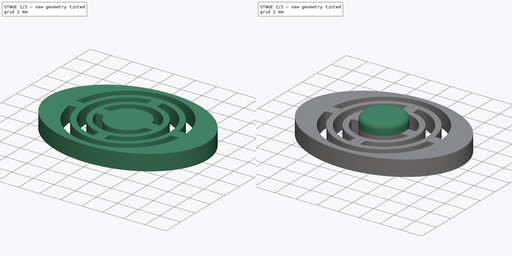
[diagram: build sequence overview — one tinted view per stage of 2, left to right]
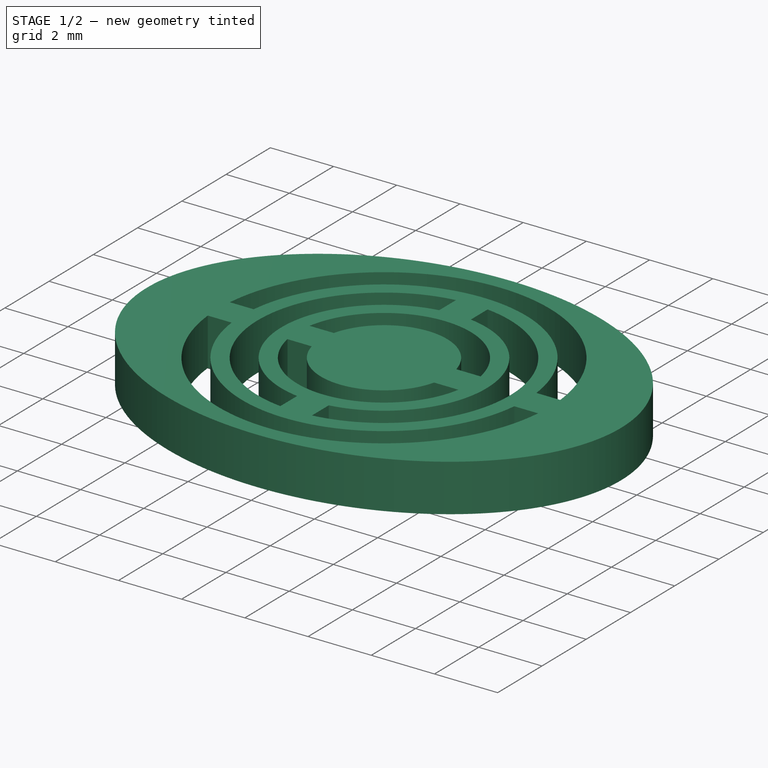
[diagram: stage 1 of 2 — iso view after this stage's code; geometry added in this stage tinted green]
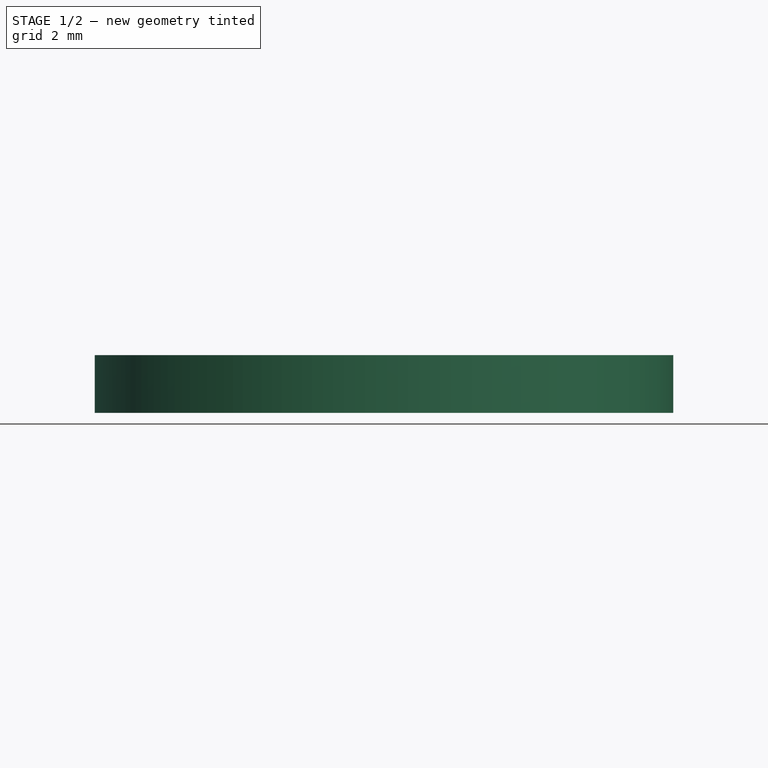
[diagram: stage 1 of 2 — front view after this stage's code; geometry added in this stage tinted green]
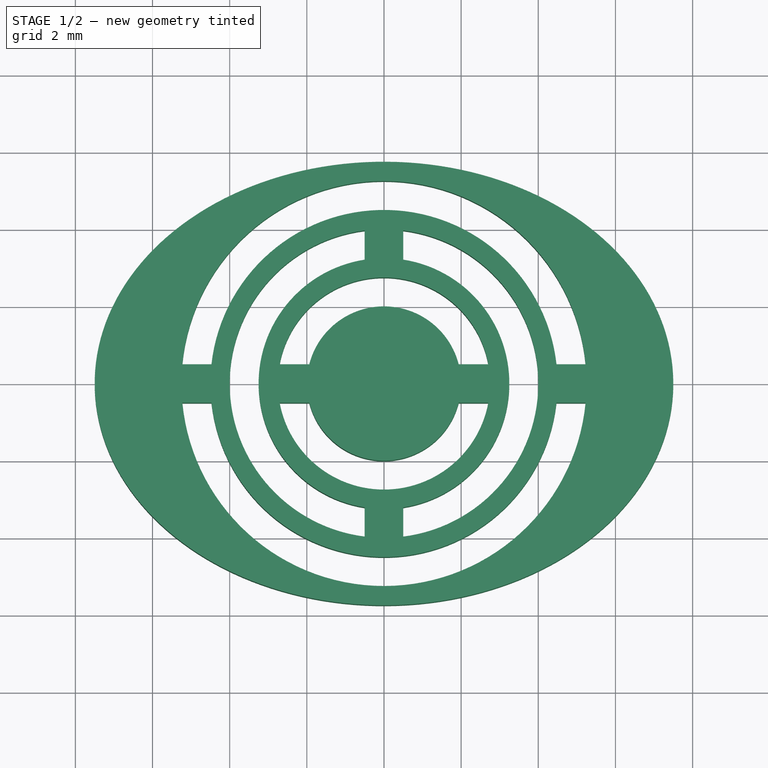
[diagram: stage 1 of 2 — top view after this stage's code; geometry added in this stage tinted green]
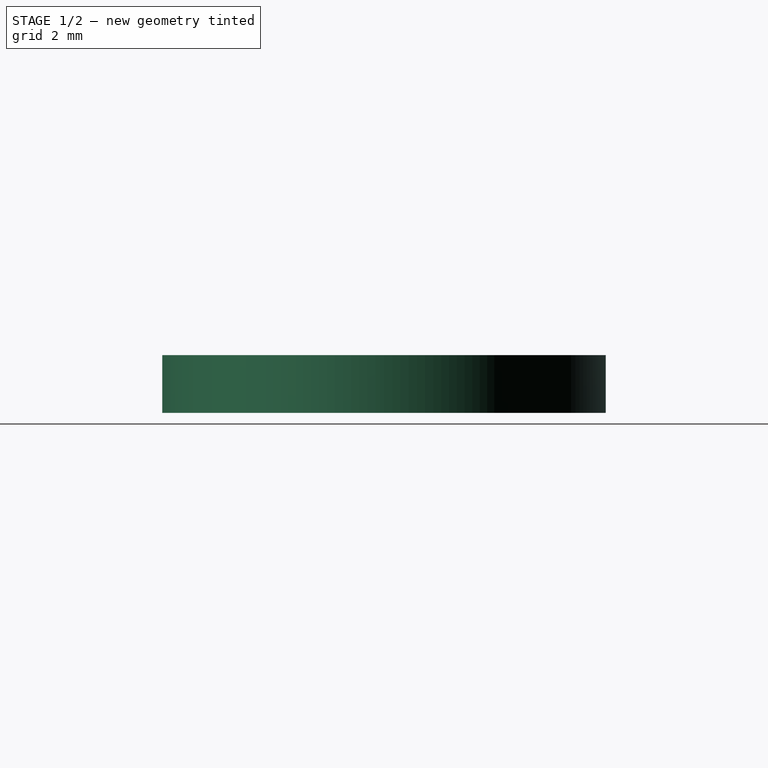
[diagram: stage 1 of 2 — right view after this stage's code; geometry added in this stage tinted green]
FCSTD DOCUMENT  (FreeCAD 0.20R27319 (Git))
Label: Remote Button Cap V2
License: All rights reserved
LicenseURL: http://en.wikipedia.org/wiki/All_rights_reserved
objects: Sketcher::SketchObject×3, PartDesign::Pad×2, PartDesign::Pocket×1, PartDesign::Fillet×1, PartDesign::Body×1
note: 12 computed .brp shape members not serialized (recipe doc carries the construction recipe); baked Part::Feature solids carry a one-line shape summary decoded from their .brp

FEATURE [Sketcher::SketchObject] Sketch
  FullyConstrained = true
  MapMode = 5
  Support = -> [XY_Plane]
  sketch-geometry (5):
    g0: Ellipse CenterX=0 CenterY=0 CenterZ=0 NormalX=0 NormalY=0 NormalZ=1 MajorRadius=7.5 MinorRadius=5.75 AngleXU=0
    g1: LineSegment StartX=7.5 StartY=0 StartZ=0 EndX=-7.5 EndY=0 EndZ=0
    g2: LineSegment StartX=0 StartY=5.75 StartZ=0 EndX=0 EndY=-5.75 EndZ=0
    g3: GeomPoint X=4.81534 Y=0 Z=0
    g4: GeomPoint X=-4.81534 Y=0 Z=0
  constraints (5):
    c: InternalAlignment(g1-g4 -> g0) x4
    c: Coincident(g0,g-1)
    c: PointOnObject(g1,g-1)
    c: DistanceX(g1,g1) = 15
    c: DistanceY(g2,g2) = 11.5
FEATURE [PartDesign::Pad] Pad
  Direction = (0,0,1)
  Length = 1.5
  Length2 = 10
  Profile = -> Sketch
  ReferenceAxis = -> Sketch [N_Axis]
  Type = 0
FEATURE [Sketcher::SketchObject] Sketch001
  ExternalGeometry = -> [Pad]
  FullyConstrained = true
  MapMode = 5
  Placement = pos=(0,0,1.5) rot=(0,0,1;0rad)
  Support = -> [Pad]
  sketch-geometry (42):
    g0: Circle CenterX=0 CenterY=0 CenterZ=0 NormalX=0 NormalY=0 NormalZ=1 AngleXU=0 Radius=3.25
    g1: Circle CenterX=0 CenterY=0 CenterZ=0 NormalX=0 NormalY=0 NormalZ=1 AngleXU=0 Radius=4
    g2: LineSegment StartX=0.5 StartY=-5.73721 StartZ=0 EndX=0.5 EndY=5.73721 EndZ=0
    g3: LineSegment StartX=0.5 StartY=5.73721 StartZ=0 EndX=-0.5 EndY=5.73721 EndZ=0
    g4: LineSegment StartX=-0.5 StartY=5.73721 StartZ=0 EndX=-0.5 EndY=-5.73721 EndZ=0
    g5: LineSegment StartX=-0.5 StartY=-5.73721 StartZ=0 EndX=0.5 EndY=-5.73721 EndZ=0
    g6: GeomPoint X=0 Y=0 Z=0
    g7: ArcOfCircle CenterX=0 CenterY=0 CenterZ=0 NormalX=0 NormalY=0 NormalZ=1 AngleXU=0 Radius=4 StartAngle=4.83772 EndAngle=7.72865
    g8: ArcOfCircle CenterX=0 CenterY=0 CenterZ=0 NormalX=0 NormalY=0 NormalZ=1 AngleXU=0 Radius=4 StartAngle=1.69612 EndAngle=4.58706
    g9: ArcOfCircle CenterX=0 CenterY=0 CenterZ=0 NormalX=0 NormalY=0 NormalZ=1 AngleXU=0 Radius=3.25 StartAngle=1.72526 EndAngle=4.55793
    g10: ArcOfCircle CenterX=0 CenterY=0 CenterZ=0 NormalX=0 NormalY=0 NormalZ=1 AngleXU=0 Radius=3.25 StartAngle=4.86685 EndAngle=7.69952
    g11: LineSegment StartX=-0.5 StartY=3.96863 StartZ=0 EndX=-0.5 EndY=3.21131 EndZ=0
    g12: LineSegment StartX=0.5 StartY=3.96863 StartZ=0 EndX=0.5 EndY=3.21131 EndZ=0
    g13: LineSegment StartX=-0.5 StartY=-3.21131 StartZ=0 EndX=-0.5 EndY=-3.96863 EndZ=0
    g14: LineSegment StartX=0.5 StartY=-3.21131 StartZ=0 EndX=0.5 EndY=-3.96863 EndZ=0
    g15: LineSegment StartX=-7.47159 StartY=0.5 StartZ=0 EndX=-7.47159 EndY=-0.5 EndZ=0
    g16: LineSegment StartX=-7.47159 StartY=-0.5 StartZ=0 EndX=7.47159 EndY=-0.5 EndZ=0
    g17: LineSegment StartX=7.47159 StartY=-0.5 StartZ=0 EndX=7.47159 EndY=0.5 EndZ=0
    g18: LineSegment StartX=7.47159 StartY=0.5 StartZ=0 EndX=-7.47159 EndY=0.5 EndZ=0
    g19: GeomPoint X=0 Y=0 Z=0
    g20: GeomPoint X=0 Y=5.75 Z=0
    g21: GeomPoint X=-7.5 Y=0 Z=0
    g22: LineSegment StartX=-5.22614 StartY=0.5 StartZ=0 EndX=-4.47214 EndY=0.5 EndZ=0
    g23: LineSegment StartX=-5.22614 StartY=-0.5 StartZ=0 EndX=-4.47214 EndY=-0.5 EndZ=0
    g24: LineSegment StartX=4.47214 StartY=0.5 StartZ=0 EndX=5.22614 EndY=0.5 EndZ=0
    g25: LineSegment StartX=4.47214 StartY=-0.5 StartZ=0 EndX=5.22614 EndY=-0.5 EndZ=0
    g26: Circle CenterX=0 CenterY=0 CenterZ=0 NormalX=0 NormalY=0 NormalZ=1 AngleXU=0 Radius=2.75
    g27: Circle CenterX=0 CenterY=0 CenterZ=0 NormalX=0 NormalY=0 NormalZ=1 AngleXU=0 Radius=2
    g28: LineSegment StartX=-2.70416 StartY=0.5 StartZ=0 EndX=-1.93649 EndY=0.5 EndZ=0
    g29: LineSegment StartX=-2.70416 StartY=-0.5 StartZ=0 EndX=-1.93649 EndY=-0.5 EndZ=0
    g30: LineSegment StartX=1.93649 StartY=0.5 StartZ=0 EndX=2.70416 EndY=0.5 EndZ=0
    g31: LineSegment StartX=1.93649 StartY=-0.5 StartZ=0 EndX=2.70416 EndY=-0.5 EndZ=0
    g32: ArcOfCircle CenterX=0 CenterY=0 CenterZ=0 NormalX=0 NormalY=0 NormalZ=1 AngleXU=0 Radius=2 StartAngle=0.25268 EndAngle=2.88891
    g33: ArcOfCircle CenterX=0 CenterY=0 CenterZ=0 NormalX=0 NormalY=0 NormalZ=1 AngleXU=0 Radius=2.75 StartAngle=0.182835 EndAngle=2.95876
    g34: ArcOfCircle CenterX=0 CenterY=0 CenterZ=0 NormalX=0 NormalY=0 NormalZ=1 AngleXU=0 Radius=2.75 StartAngle=3.32443 EndAngle=6.10035
    g35: ArcOfCircle CenterX=0 CenterY=0 CenterZ=0 NormalX=0 NormalY=0 NormalZ=1 AngleXU=0 Radius=2 StartAngle=3.39427 EndAngle=6.03051
    g36: Circle CenterX=0 CenterY=0 CenterZ=0 NormalX=0 NormalY=0 NormalZ=1 AngleXU=0 Radius=4.5
    g37: Circle CenterX=0 CenterY=0 CenterZ=0 NormalX=0 NormalY=0 NormalZ=1 AngleXU=0 Radius=5.25
    g38: ArcOfCircle CenterX=0 CenterY=0 CenterZ=0 NormalX=0 NormalY=0 NormalZ=1 AngleXU=0 Radius=4.5 StartAngle=0.111341 EndAngle=3.03025
    g39: ArcOfCircle CenterX=0 CenterY=0 CenterZ=0 NormalX=0 NormalY=0 NormalZ=1 AngleXU=0 Radius=5.25 StartAngle=0.0953827 EndAngle=3.04621
    g40: ArcOfCircle CenterX=0 CenterY=0 CenterZ=0 NormalX=0 NormalY=0 NormalZ=1 AngleXU=0 Radius=4.5 StartAngle=3.25293 EndAngle=6.17184
    g41: ArcOfCircle CenterX=0 CenterY=0 CenterZ=0 NormalX=0 NormalY=0 NormalZ=1 AngleXU=0 Radius=5.25 StartAngle=3.23698 EndAngle=6.1878
  constraints (112):
    c: Diameter(g0) = 6.5
    c: Coincident(g2,g3)
    c: Coincident(g3,g4)
    c: Coincident(g4,g5)
    c: Coincident(g5,g2)
    c: Horizontal(g3)
    c: Horizontal(g5)
    c: Vertical(g2)
    c: Vertical(g4)
    c: Symmetric(g3,g2,g6)
    c: Coincident(g6,g0)
    c: Distance(g3) = 1
    c: PointOnObject(g3,g-3)
    c: Coincident(g0,g1)
    c: Coincident(g0,g-3)
    c: Coincident(g7,g0)
    c: PointOnObject(g7,g2)
    c: PointOnObject(g7,g2)
    c: Coincident(g8,g0)
    c: PointOnObject(g8,g4)
    c: PointOnObject(g8,g4)
    c: Coincident(g9,g0)
    c: PointOnObject(g9,g4)
    c: PointOnObject(g9,g4)
    c: Coincident(g10,g0)
    c: PointOnObject(g10,g2)
    c: PointOnObject(g10,g2)
    c: Equal(g9,g10)
    c: Equal(g10,g0)
    c: Equal(g8,g7)
    c: Equal(g7,g1)
    c: Coincident(g11,g8)
    c: Coincident(g11,g9)
    c: Coincident(g12,g7)
    c: Coincident(g12,g10)
    c: Coincident(g13,g9)
    c: Coincident(g13,g8)
    c: Coincident(g14,g10)
    c: Coincident(g14,g7)
    c: Coincident(g15,g16)
    c: Coincident(g16,g17)
    c: Coincident(g17,g18)
    c: Coincident(g18,g15)
    c: Horizontal(g16)
    c: Horizontal(g18)
    c: Vertical(g15)
    c: Vertical(g17)
    c: Symmetric(g16,g15,g19)
    c: Coincident(g19,g7)
    c: Distance(g17) = 1
    c: PointOnObject(g17,g-3)
    c: PointOnObject(g20,g-3)
    c: PointOnObject(g20,g-2)
    c: PointOnObject(g21,g-3)
    c: PointOnObject(g21,g-1)
    c: PointOnObject(g22,g18)
    c: PointOnObject(g23,g16)
    c: PointOnObject(g22,g18)
    c: PointOnObject(g23,g16)
    c: PointOnObject(g24,g18)
    c: PointOnObject(g24,g18)
    c: Horizontal(g25)
    c: PointOnObject(g25,g16)
    c: Diameter(g1) = 8
    c: Coincident(g26,g7)
    c: Coincident(g27,g7)
    c: PointOnObject(g28,g18)
    c: PointOnObject(g28,g18)
    c: PointOnObject(g29,g16)
    c: PointOnObject(g29,g16)
    c: PointOnObject(g30,g18)
    c: PointOnObject(g30,g18)
    c: PointOnObject(g31,g16)
    c: PointOnObject(g31,g16)
    c: PointOnObject(g30,g26)
    c: PointOnObject(g31,g26)
    c: PointOnObject(g30,g27)
    c: PointOnObject(g31,g27)
    c: Coincident(g32,g7)
    c: Coincident(g32,g28)
    c: Coincident(g32,g30)
    c: Coincident(g33,g7)
    c: Coincident(g33,g28)
    c: Coincident(g33,g30)
    c: Coincident(g34,g7)
    c: Coincident(g34,g29)
    c: Coincident(g34,g31)
    c: Coincident(g35,g7)
    c: Coincident(g35,g29)
    c: Coincident(g35,g31)
    c: Diameter(g26) = 5.5
    c: Diameter(g27) = 4
    c: Coincident(g36,g7)
    c: Coincident(g37,g7)
    c: Diameter(g37) = 10.5
    c: Diameter(g36) = 9
    c: PointOnObject(g24,g36)
    c: PointOnObject(g25,g36)
    c: PointOnObject(g24,g37)
    c: PointOnObject(g25,g37)
    c: Coincident(g38,g7)
    c: Coincident(g38,g22)
    c: Coincident(g38,g24)
    c: Coincident(g39,g7)
    c: Coincident(g39,g22)
    c: Coincident(g39,g24)
    c: Coincident(g40,g7)
    c: Coincident(g40,g23)
    c: Coincident(g40,g25)
    c: Coincident(g41,g7)
    c: Coincident(g41,g23)
    c: Coincident(g41,g25)
FEATURE [PartDesign::Pocket] Pocket
  BaseFeature = -> Pad
  Direction = (0,0,-1)
  Length = 5
  Length2 = 5
  Profile = -> Sketch001
  ReferenceAxis = -> Sketch001 [N_Axis]
  Type = 1
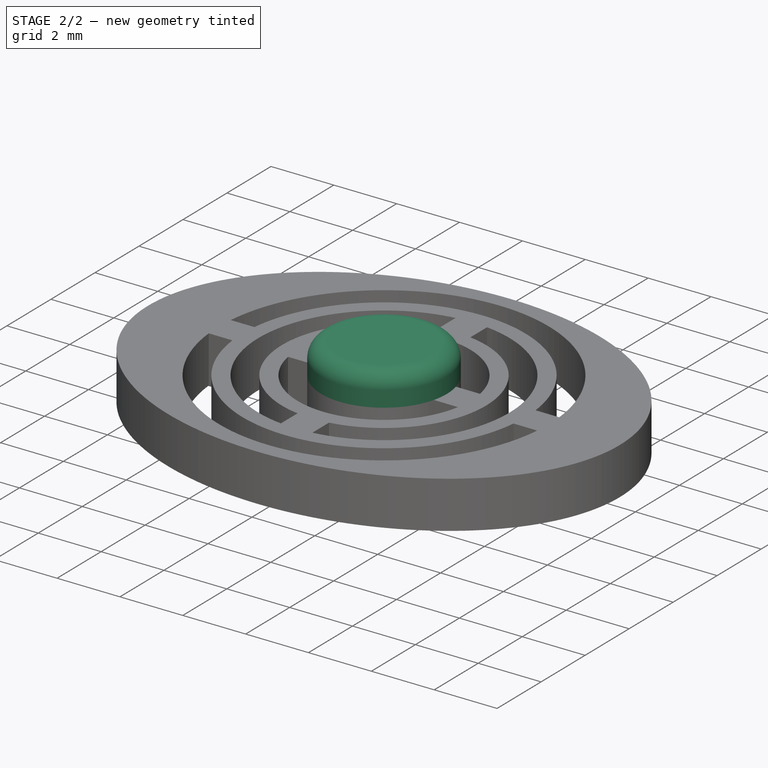
[diagram: stage 2 of 2 — iso view after this stage's code; geometry added in this stage tinted green]
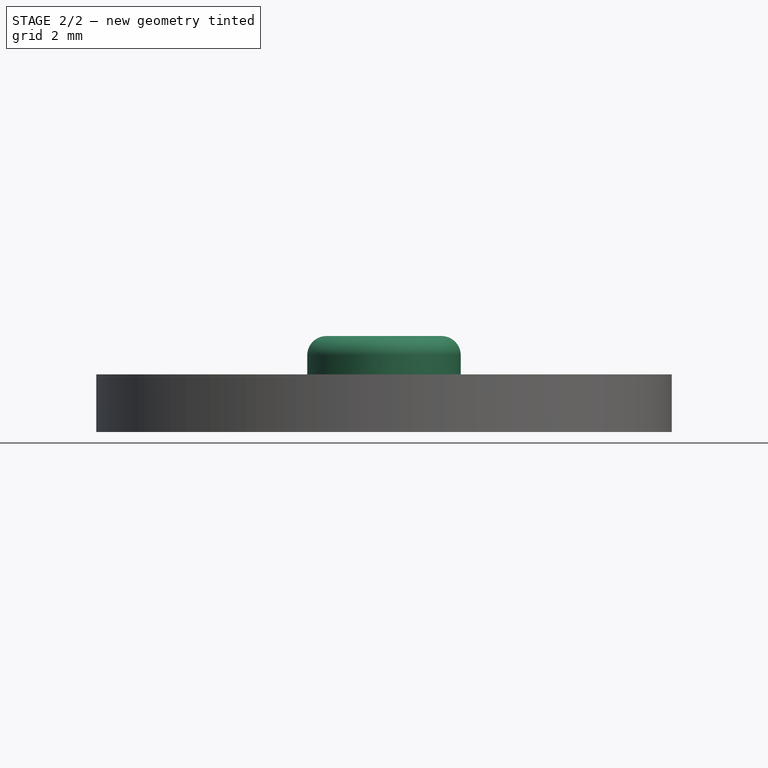
[diagram: stage 2 of 2 — front view after this stage's code; geometry added in this stage tinted green]
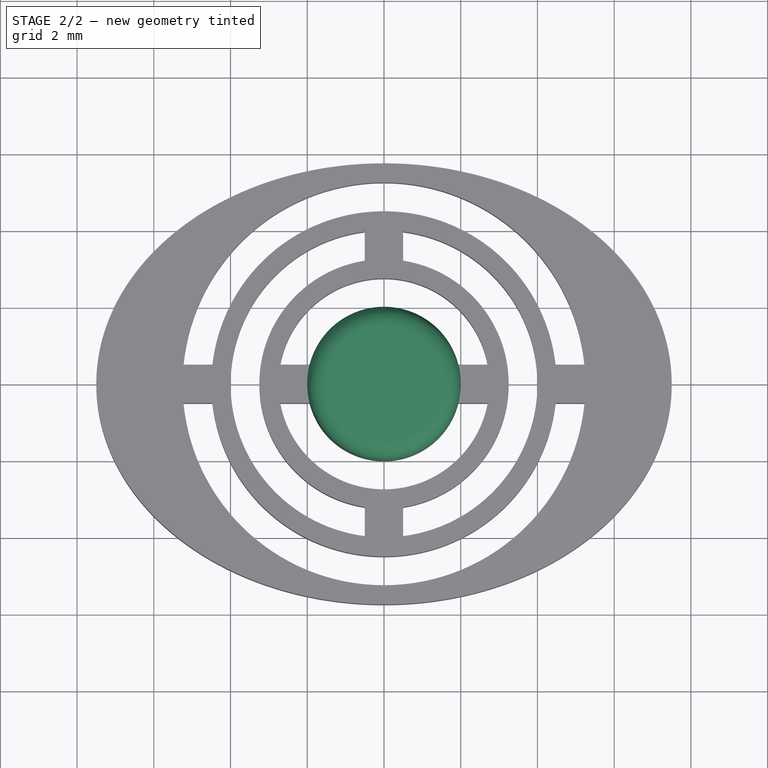
[diagram: stage 2 of 2 — top view after this stage's code; geometry added in this stage tinted green]
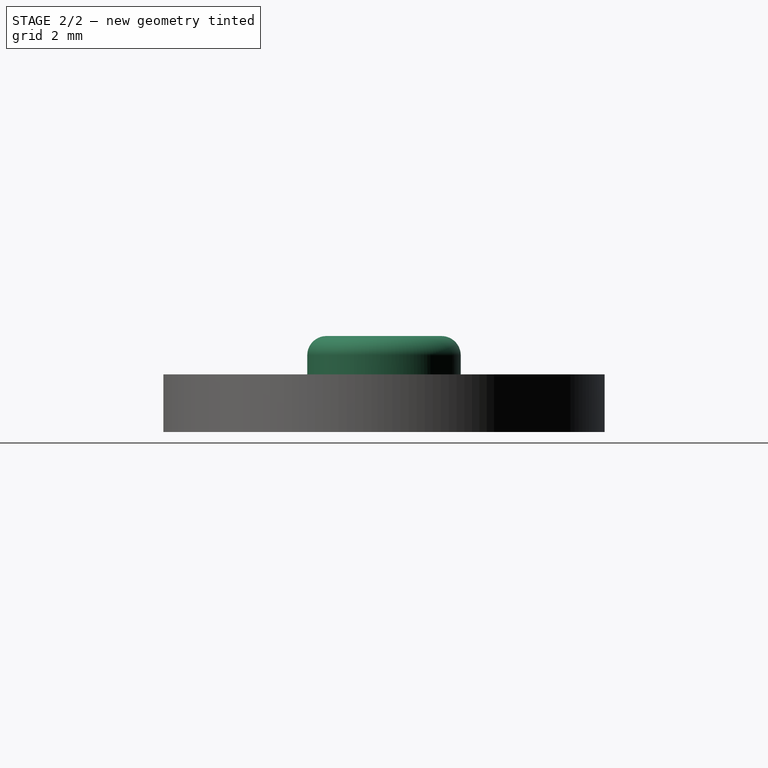
[diagram: stage 2 of 2 — right view after this stage's code; geometry added in this stage tinted green]
FEATURE [Sketcher::SketchObject] Sketch002
  ExternalGeometry = -> [Sketch001]
  FullyConstrained = false
  MapMode = 5
  Placement = pos=(0,0,1.5) rot=(0,0,1;0rad)
  Support = -> [Pocket]
  sketch-geometry (1):
    g0: Circle CenterX=0 CenterY=0 CenterZ=0 NormalX=0 NormalY=0 NormalZ=1 AngleXU=0 Radius=2
  constraints (1):
    c: Equal(g0,g-3)
FEATURE [PartDesign::Pad] Pad001
  BaseFeature = -> Pocket
  Direction = (0,0,1)
  Length = 1
  Length2 = 10
  Profile = -> Sketch002
  ReferenceAxis = -> Sketch002 [N_Axis]
  Type = 0
FEATURE [PartDesign::Fillet] Fillet
  Base = -> Pad001 [Face29]
  BaseFeature = -> Pad001
  Radius = 0.5
  SupportTransform = false
FEATURE [PartDesign::Body] Body
  Group = -> [Sketch,Pad,Sketch001,Pocket,Sketch002,Pad001,Fillet]
  Origin = -> Origin
  Tip = -> Fillet
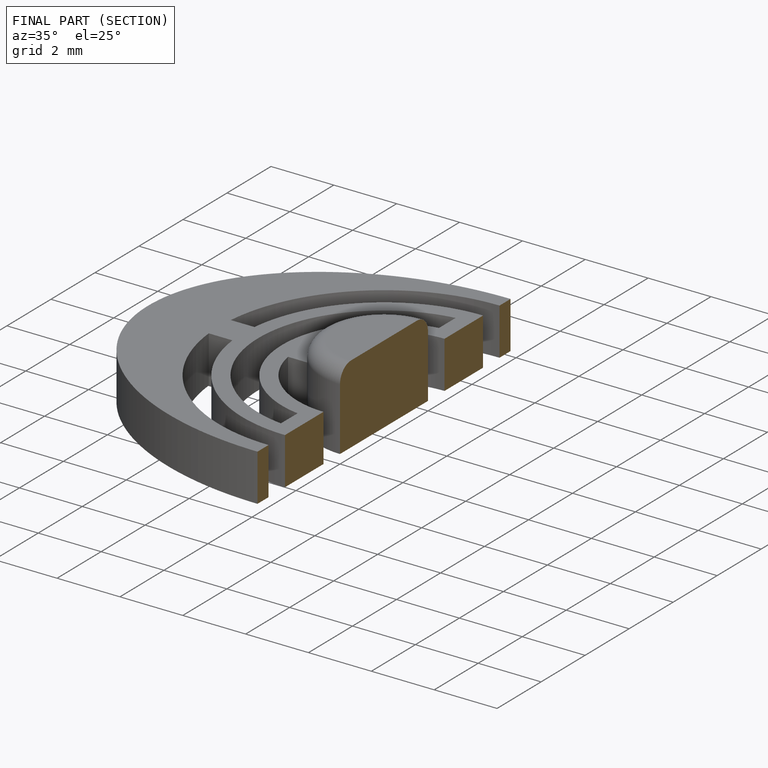
[diagram: finished part — half-section view (interior)]
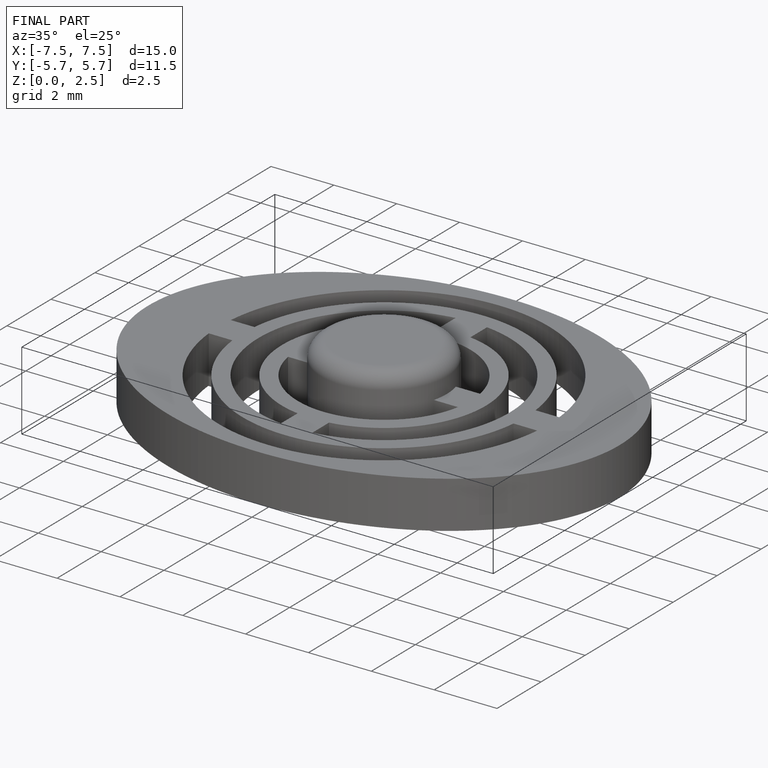
[diagram: finished part — iso view with bounding-box wireframe]
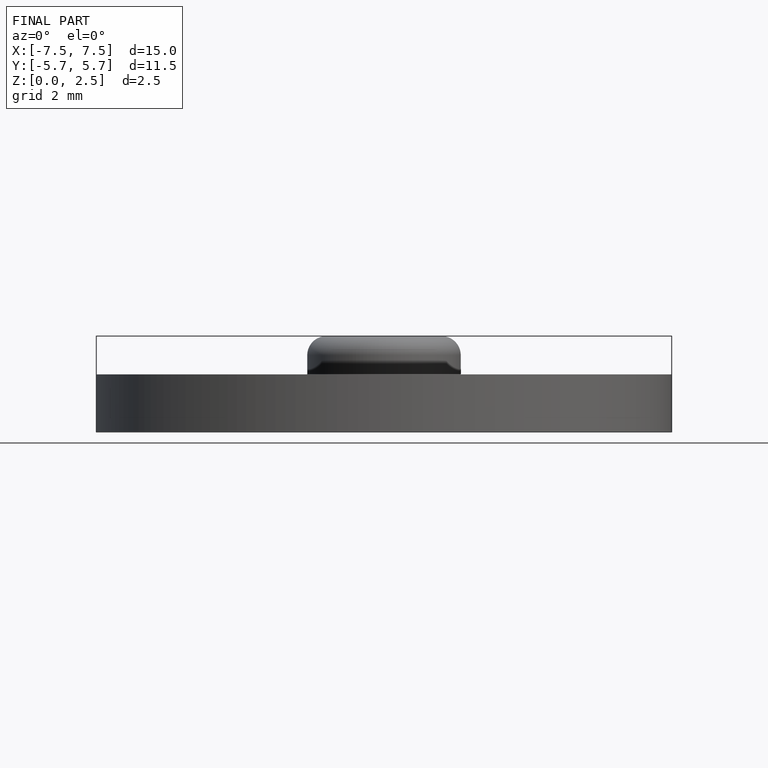
[diagram: finished part — front view with bounding-box wireframe]
